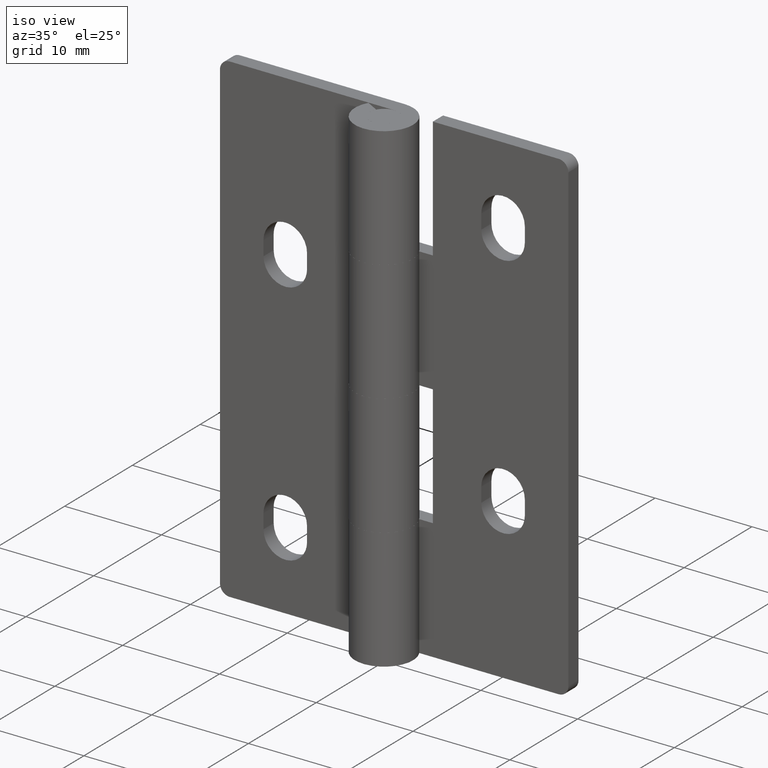
[diagram: clean part render]
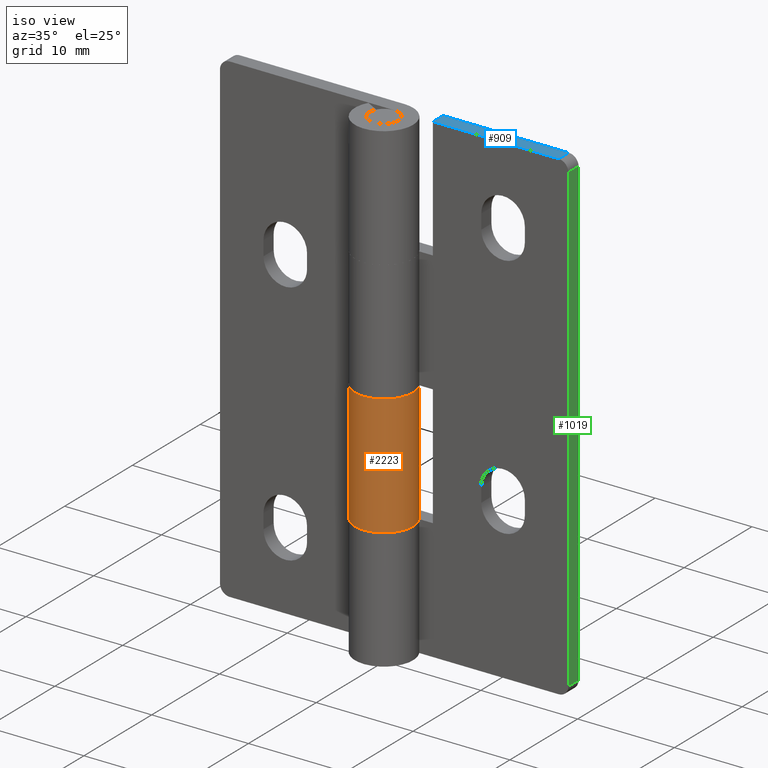
[diagram: same view with three faces highlighted in distinct colors, each labeled with its STEP entity id]
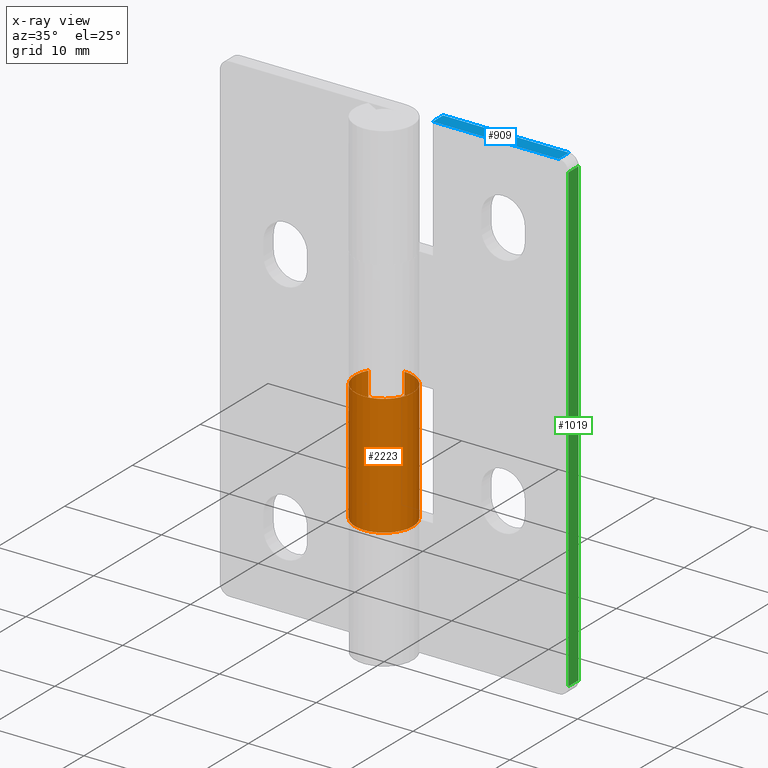
[diagram: x-ray of the same camera — body ghosted, the three highlighted faces saturated]
A machine part, iso view with three faces highlighted in distinct colors.
The next image is the same camera in x-ray (body ghosted, the three faces saturated) — at least one of them is partly hidden behind the body in this view.
Their STEP definitions:

[orange] entity #2223 — the highlighted face is a freeform B-spline surface patch.
#1698=CARTESIAN_POINT('',(-2.626309197333890,1.449999999999800,25.0));
#1699=VERTEX_POINT('',#1698);
#1700=CARTESIAN_POINT('',(0.0,3.0,25.0));
#1701=VERTEX_POINT('',#1700);
#1702=CARTESIAN_POINT('',(-2.626309197333890,1.449999999999800,25.0));
#1703=CARTESIAN_POINT('',(-3.733431584505705,-0.555272902071919,25.000000000000004));
#1704=CARTESIAN_POINT('',(-2.090650590885968,-2.151552952364443,25.0));
#1705=CARTESIAN_POINT('',(-0.447869597266230,-3.747833002656968,25.000000000000004));
#1706=CARTESIAN_POINT('',(1.524795068197790,-2.583602136552704,25.0));
#1707=CARTESIAN_POINT('',(3.497459733661808,-1.419371270448441,25.000000000000004));
#1708=CARTESIAN_POINT('',(2.894028888043286,0.790314364775779,25.0));
#1709=CARTESIAN_POINT('',(2.290598042424762,3.0,25.000000000000004));
#1710=CARTESIAN_POINT('',(0.0,3.0,25.0));
#1718=(BOUNDED_CURVE()B_SPLINE_CURVE(2,(#1702,#1703,#1704,#1705,#1706,#1707,#1708,#1709,#1710),.UNSPECIFIED.,.F.,.U.)B_SPLINE_CURVE_WITH_KNOTS((3,2,2,2,3),(0.0,0.250000000000000,0.500000000000000,0.750000000000000,1.0),.UNSPECIFIED.)CURVE()GEOMETRIC_REPRESENTATION_ITEM()RATIONAL_B_SPLINE_CURVE((1.0,0.794807562115487,1.0,0.794807562115487,1.0,0.794807562115487,1.0,0.794807562115487,1.0))REPRESENTATION_ITEM(''));
#1719=EDGE_CURVE('',#1699,#1701,#1718,.T.);
#1910=CARTESIAN_POINT('',(0.0,3.0,12.500000000000000));
#1911=VERTEX_POINT('',#1910);
#1912=CARTESIAN_POINT('',(-2.626309197333890,1.449999999999800,12.500000000000000));
#1913=VERTEX_POINT('',#1912);
#1914=CARTESIAN_POINT('',(0.0,3.0,12.500000000000000));
#1915=CARTESIAN_POINT('',(2.290598042424763,3.000000000000000,12.500000000000000));
#1916=CARTESIAN_POINT('',(2.894028888043286,0.790314364775779,12.500000000000000));
#1917=CARTESIAN_POINT('',(3.497459733661809,-1.419371270448443,12.500000000000000));
#1918=CARTESIAN_POINT('',(1.524795068197789,-2.583602136552705,12.500000000000000));
#1919=CARTESIAN_POINT('',(-0.447869597266232,-3.747833002656969,12.500000000000000));
#1920=CARTESIAN_POINT('',(-2.090650590885969,-2.151552952364442,12.500000000000000));
#1921=CARTESIAN_POINT('',(-3.733431584505705,-0.555272902071918,12.500000000000000));
#1922=CARTESIAN_POINT('',(-2.626309197333890,1.449999999999800,12.500000000000000));
#1930=(BOUNDED_CURVE()B_SPLINE_CURVE(2,(#1914,#1915,#1916,#1917,#1918,#1919,#1920,#1921,#1922),.UNSPECIFIED.,.F.,.U.)B_SPLINE_CURVE_WITH_KNOTS((3,2,2,2,3),(0.0,0.250000000000000,0.500000000000000,0.750000000000000,1.0),.UNSPECIFIED.)CURVE()GEOMETRIC_REPRESENTATION_ITEM()RATIONAL_B_SPLINE_CURVE((1.0,0.794807562115487,1.0,0.794807562115487,1.0,0.794807562115487,1.0,0.794807562115487,1.0))REPRESENTATION_ITEM(''));
#1931=EDGE_CURVE('',#1911,#1913,#1930,.T.);
#2097=CARTESIAN_POINT('',(-2.626309197333890,1.449999999999800,25.0));
#2098=CARTESIAN_POINT('',(-2.626309197333890,1.449999999999800,12.500000000000000));
#2099=QUASI_UNIFORM_CURVE('',1,(#2097,#2098),.UNSPECIFIED.,.F.,.U.);
#2100=EDGE_CURVE('',#1699,#1913,#2099,.T.);
#2191=CARTESIAN_POINT('',(-2.584887481324576,1.522615088882112,25.312500000000000));
#2192=CARTESIAN_POINT('',(-2.584887481324576,1.522615088882112,12.179687500000000));
#2193=CARTESIAN_POINT('',(-4.454017153952614,-1.650537421576552,25.312500000000004));
#2194=CARTESIAN_POINT('',(-4.454017153952614,-1.650537421576552,12.179687500000000));
#2195=CARTESIAN_POINT('',(-0.968449136630486,-2.839384840024272,25.312500000000000));
#2196=CARTESIAN_POINT('',(-0.968449136630486,-2.839384840024272,12.179687500000000));
#2197=CARTESIAN_POINT('',(2.517118880691642,-4.028232258471992,25.312500000000004));
#2198=CARTESIAN_POINT('',(2.517118880691642,-4.028232258471992,12.179687500000000));
#2199=CARTESIAN_POINT('',(2.976562347997527,-0.374268070349911,25.312500000000000));
#2200=CARTESIAN_POINT('',(2.976562347997527,-0.374268070349911,12.179687500000000));
#2201=CARTESIAN_POINT('',(3.436005815303412,3.279696117772171,25.312500000000004));
#2202=CARTESIAN_POINT('',(3.436005815303412,3.279696117772171,12.179687500000000));
#2203=CARTESIAN_POINT('',(-0.235377287183536,2.990752001199384,25.312500000000000));
#2204=CARTESIAN_POINT('',(-0.235377287183536,2.990752001199384,12.179687500000000));
#2212=(BOUNDED_SURFACE()B_SPLINE_SURFACE(1,2,((#2191,#2193,#2195,#2197,#2199,#2201,#2203),(#2192,#2194,#2196,#2198,#2200,#2202,#2204)),.UNSPECIFIED.,.F.,.F.,.U.)B_SPLINE_SURFACE_WITH_KNOTS((2,2),(3,2,2,3),(0.0,13.132812500000011),(0.0,5.702297214197750,11.404594428395500,17.106891642593251),.UNSPECIFIED.)GEOMETRIC_REPRESENTATION_ITEM()RATIONAL_B_SPLINE_SURFACE(((1.0,0.631578351302498,1.0,0.631578351302498,1.0,0.631578351302498,1.0),(1.0,0.631578351302498,1.0,0.631578351302498,1.0,0.631578351302498,1.0)))REPRESENTATION_ITEM('')SURFACE());
#2213=ORIENTED_EDGE('',*,*,#1719,.F.);
#2214=ORIENTED_EDGE('',*,*,#2100,.T.);
#2215=ORIENTED_EDGE('',*,*,#1931,.F.);
#2216=CARTESIAN_POINT('',(0.0,3.0,25.0));
#2217=CARTESIAN_POINT('',(0.0,3.0,12.500000000000000));
#2218=QUASI_UNIFORM_CURVE('',1,(#2216,#2217),.UNSPECIFIED.,.F.,.U.);
#2219=EDGE_CURVE('',#1701,#1911,#2218,.T.);
#2220=ORIENTED_EDGE('',*,*,#2219,.F.);
#2221=EDGE_LOOP('',(#2213,#2214,#2215,#2220));
#2222=FACE_OUTER_BOUND('',#2221,.T.);
#2223=ADVANCED_FACE('',(#2222),#2212,.T.);

[blue] entity #909 — the highlighted face is a freeform B-spline surface patch.
#58=CARTESIAN_POINT('',(17.0,3.0,50.0));
#59=VERTEX_POINT('',#58);
#75=CARTESIAN_POINT('',(17.0,1.500000000000000,50.0));
#76=VERTEX_POINT('',#75);
#77=CARTESIAN_POINT('',(17.0,1.500000000000000,50.0));
#78=CARTESIAN_POINT('',(17.0,3.0,50.0));
#79=QUASI_UNIFORM_CURVE('',1,(#77,#78),.UNSPECIFIED.,.F.,.U.);
#80=EDGE_CURVE('',#76,#59,#79,.T.);
#621=CARTESIAN_POINT('',(4.0,1.500000000000000,50.0));
#622=VERTEX_POINT('',#621);
#628=CARTESIAN_POINT('',(4.0,3.0,50.0));
#629=VERTEX_POINT('',#628);
#630=CARTESIAN_POINT('',(4.0,1.500000000000000,50.0));
#631=CARTESIAN_POINT('',(4.0,3.0,50.0));
#632=QUASI_UNIFORM_CURVE('',1,(#630,#631),.UNSPECIFIED.,.F.,.U.);
#633=EDGE_CURVE('',#622,#629,#632,.T.);
#890=CARTESIAN_POINT('',(3.350650025196523,1.425075002907291,50.0));
#891=CARTESIAN_POINT('',(17.649350323490651,1.425075002907291,50.0));
#892=CARTESIAN_POINT('',(3.350650025196523,3.074925037325845,50.0));
#893=CARTESIAN_POINT('',(17.649350323490651,3.074925037325845,50.0));
#894=B_SPLINE_SURFACE_WITH_KNOTS('',1,1,((#890,#892),(#891,#893)),.UNSPECIFIED.,.F.,.F.,.U.,(2,2),(2,2),(0.0,14.298700298294129),(0.041708334948495,0.958291687403247),.UNSPECIFIED.);
#895=CARTESIAN_POINT('',(17.0,1.500000000000000,50.0));
#896=CARTESIAN_POINT('',(4.0,1.500000000000000,50.0));
#897=QUASI_UNIFORM_CURVE('',1,(#895,#896),.UNSPECIFIED.,.F.,.U.);
#898=EDGE_CURVE('',#76,#622,#897,.T.);
#899=ORIENTED_EDGE('',*,*,#898,.F.);
#900=ORIENTED_EDGE('',*,*,#80,.T.);
#901=CARTESIAN_POINT('',(4.0,3.0,50.0));
#902=CARTESIAN_POINT('',(17.0,3.0,50.0));
#903=QUASI_UNIFORM_CURVE('',1,(#901,#902),.UNSPECIFIED.,.F.,.U.);
#904=EDGE_CURVE('',#629,#59,#903,.T.);
#905=ORIENTED_EDGE('',*,*,#904,.F.);
#906=ORIENTED_EDGE('',*,*,#633,.F.);
#907=EDGE_LOOP('',(#899,#900,#905,#906));
#908=FACE_OUTER_BOUND('',#907,.T.);
#909=ADVANCED_FACE('',(#908),#894,.T.);

[green] entity #1019 — the highlighted face is a freeform B-spline surface patch.
#60=CARTESIAN_POINT('',(18.0,3.0,49.0));
#61=VERTEX_POINT('',#60);
#82=CARTESIAN_POINT('',(18.0,1.500000000000000,49.0));
#83=VERTEX_POINT('',#82);
#97=CARTESIAN_POINT('',(18.0,3.0,49.0));
#98=CARTESIAN_POINT('',(18.0,1.500000000000000,49.0));
#99=QUASI_UNIFORM_CURVE('',1,(#97,#98),.UNSPECIFIED.,.F.,.U.);
#100=EDGE_CURVE('',#61,#83,#99,.T.);
#119=CARTESIAN_POINT('',(18.0,3.0,1.0));
#120=VERTEX_POINT('',#119);
#136=CARTESIAN_POINT('',(18.0,1.500000000000000,1.0));
#137=VERTEX_POINT('',#136);
#138=CARTESIAN_POINT('',(18.0,1.500000000000000,1.0));
#139=CARTESIAN_POINT('',(18.0,3.0,1.0));
#140=QUASI_UNIFORM_CURVE('',1,(#138,#139),.UNSPECIFIED.,.F.,.U.);
#141=EDGE_CURVE('',#137,#120,#140,.T.);
#1000=CARTESIAN_POINT('',(18.0,1.425075002907291,51.397599906966683));
#1001=CARTESIAN_POINT('',(18.0,1.425075002907291,-1.397601194427010));
#1002=CARTESIAN_POINT('',(18.0,3.074925037325845,51.397599906966683));
#1003=CARTESIAN_POINT('',(18.0,3.074925037325845,-1.397601194427010));
#1004=B_SPLINE_SURFACE_WITH_KNOTS('',1,1,((#1000,#1002),(#1001,#1003)),.UNSPECIFIED.,.F.,.F.,.U.,(2,2),(2,2),(0.0,52.795201101393687),(0.041708334948495,0.958291687403247),.UNSPECIFIED.);
#1005=CARTESIAN_POINT('',(18.0,1.500000000000000,49.0));
#1006=CARTESIAN_POINT('',(18.0,1.500000000000000,1.0));
#1007=QUASI_UNIFORM_CURVE('',1,(#1005,#1006),.UNSPECIFIED.,.F.,.U.);
#1008=EDGE_CURVE('',#83,#137,#1007,.T.);
#1009=ORIENTED_EDGE('',*,*,#1008,.T.);
#1010=ORIENTED_EDGE('',*,*,#141,.T.);
#1011=CARTESIAN_POINT('',(18.0,3.0,49.0));
#1012=CARTESIAN_POINT('',(18.0,3.0,1.0));
#1013=QUASI_UNIFORM_CURVE('',1,(#1011,#1012),.UNSPECIFIED.,.F.,.U.);
#1014=EDGE_CURVE('',#61,#120,#1013,.T.);
#1015=ORIENTED_EDGE('',*,*,#1014,.F.);
#1016=ORIENTED_EDGE('',*,*,#100,.T.);
#1017=EDGE_LOOP('',(#1009,#1010,#1015,#1016));
#1018=FACE_OUTER_BOUND('',#1017,.T.);
#1019=ADVANCED_FACE('',(#1018),#1004,.T.);